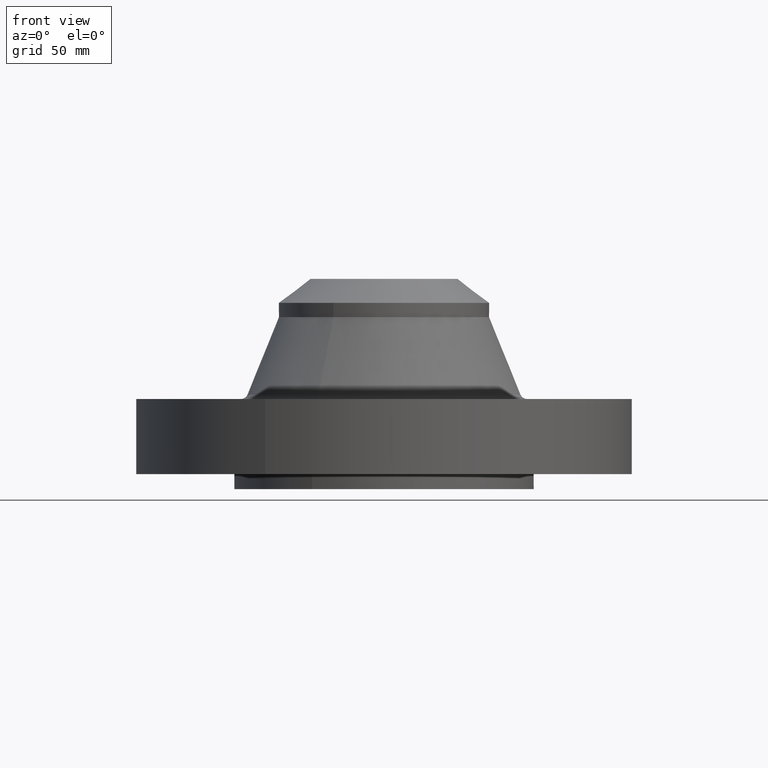
[diagram: clean part render]
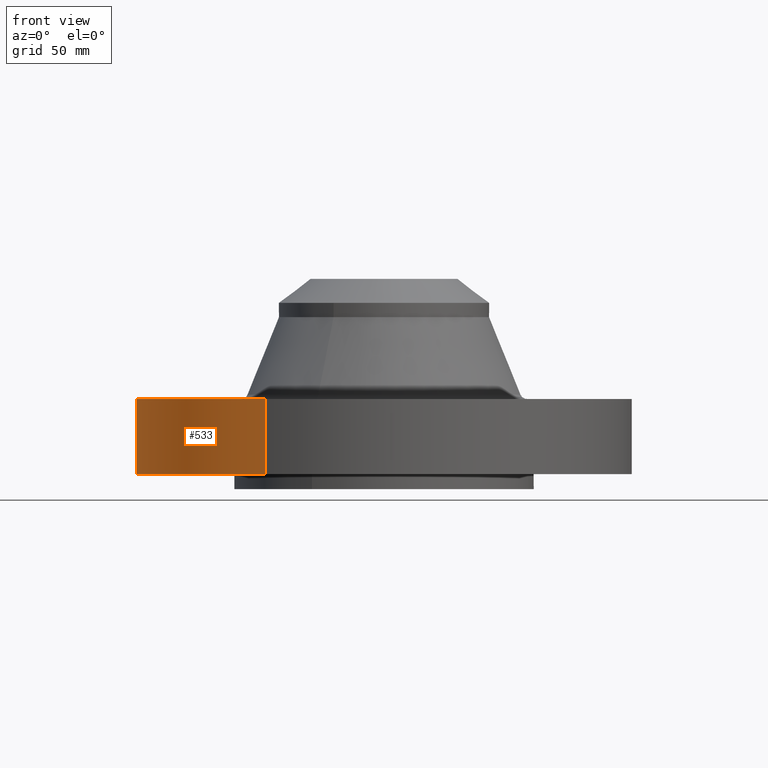
[diagram: same view with one face highlighted and labeled with its STEP entity id]
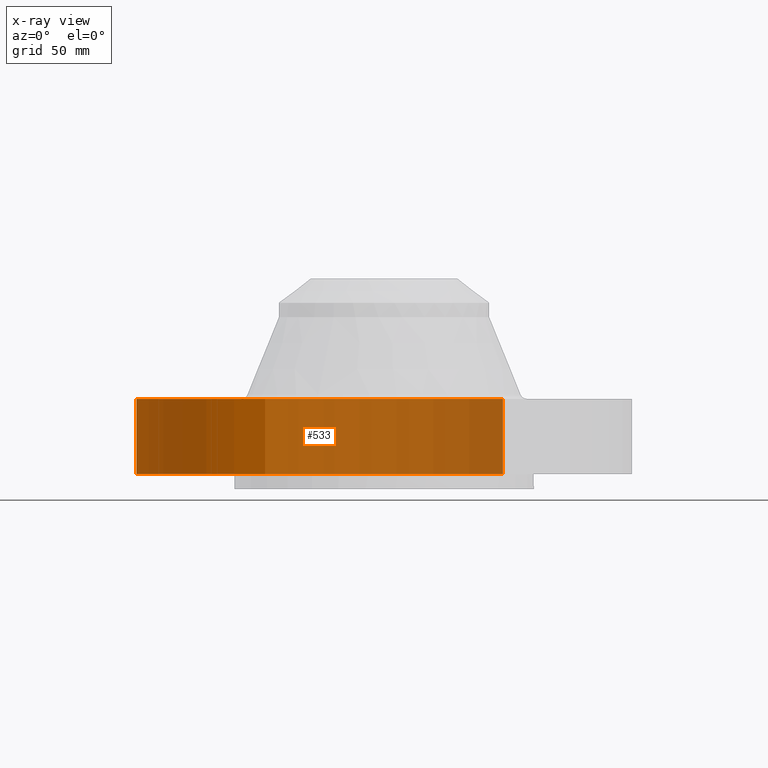
[diagram: x-ray of the same camera — body ghosted, the highlighted face saturated]
A machine part, front view. The second image highlights one B-rep face of the part: STEP entity #533.
The next image is the same camera in x-ray: the body ghosted, the highlighted face saturated — about 65% of this face is hidden behind the body in this view.
In plain terms, the highlighted cylindrical surface (partial cylindrical patch) has radius 104.775 mm, axis along (0, 0, -1).
Its self-contained STEP definition (entity closure, byte-faithful):
#143=AXIS2_PLACEMENT_3D('Circle Axis2P3D',#141,#142,$) ;
#331=AXIS2_PLACEMENT_3D('Circle Axis2P3D',#329,#330,$) ;
#515=AXIS2_PLACEMENT_3D('Cylinder Axis2P3D',#512,#513,#514) ;
#141=CARTESIAN_POINT('Axis2P3D Location',(1.1189649382E-015,1.00007491352E-011,0.)) ;
#145=CARTESIAN_POINT('Vertex',(-1.97763034678,-3.62002806781,0.)) ;
#147=CARTESIAN_POINT('Vertex',(1.97763034675,3.62002806781,2.46661833566E-011)) ;
#324=CARTESIAN_POINT('Vertex',(1.97763034678,3.62002806783,1.25000000001)) ;
#326=CARTESIAN_POINT('Vertex',(-1.97763034675,-3.62002806781,1.25000000002)) ;
#329=CARTESIAN_POINT('Axis2P3D Location',(1.1189649382E-015,5.33466534289E-012,1.25000000001)) ;
#512=CARTESIAN_POINT('Axis2P3D Location',(0.,0.,1.50000000001)) ;
#517=CARTESIAN_POINT('Line Origine',(-1.97763034675,-3.62002806781,0.625000000012)) ;
#522=CARTESIAN_POINT('Line Origine',(1.97763034675,3.62002806781,0.625000000012)) ;
#142=DIRECTION('Axis2P3D Direction',(0.,0.,-0.0393700787402)) ;
#330=DIRECTION('Axis2P3D Direction',(0.,0.,-0.0393700787402)) ;
#513=DIRECTION('Axis2P3D Direction',(0.,0.,-0.0393700787402)) ;
#514=DIRECTION('Axis2P3D XDirection',(-0.0188750212049,-0.0345504945626,0.)) ;
#518=DIRECTION('Vector Direction',(0.,0.,-0.0393700787402)) ;
#523=DIRECTION('Vector Direction',(0.,0.,-0.0393700787402)) ;
#519=VECTOR('Line Direction',#518,0.0393700787402) ;
#524=VECTOR('Line Direction',#523,0.0393700787402) ;
#528=ORIENTED_EDGE('',*,*,#149,.F.) ;
#529=ORIENTED_EDGE('',*,*,#521,.T.) ;
#530=ORIENTED_EDGE('',*,*,#333,.T.) ;
#531=ORIENTED_EDGE('',*,*,#526,.F.) ;
#533=ADVANCED_FACE('PartBody',(#532),#516,.T.) ;
#144=CIRCLE('generated circle',#143,4.12500000004) ;
#332=CIRCLE('generated circle',#331,4.12500000004) ;
#516=CYLINDRICAL_SURFACE('generated cylinder',#515,4.12500000002) ;
#149=EDGE_CURVE('',#146,#148,#144,.T.) ;
#333=EDGE_CURVE('',#327,#325,#332,.T.) ;
#521=EDGE_CURVE('',#146,#327,#520,.F.) ;
#526=EDGE_CURVE('',#148,#325,#525,.F.) ;
#527=EDGE_LOOP('',(#528,#529,#530,#531)) ;
#532=FACE_OUTER_BOUND('',#527,.T.) ;
#520=LINE('Line',#517,#519) ;
#525=LINE('Line',#522,#524) ;
#146=VERTEX_POINT('',#145) ;
#148=VERTEX_POINT('',#147) ;
#325=VERTEX_POINT('',#324) ;
#327=VERTEX_POINT('',#326) ;